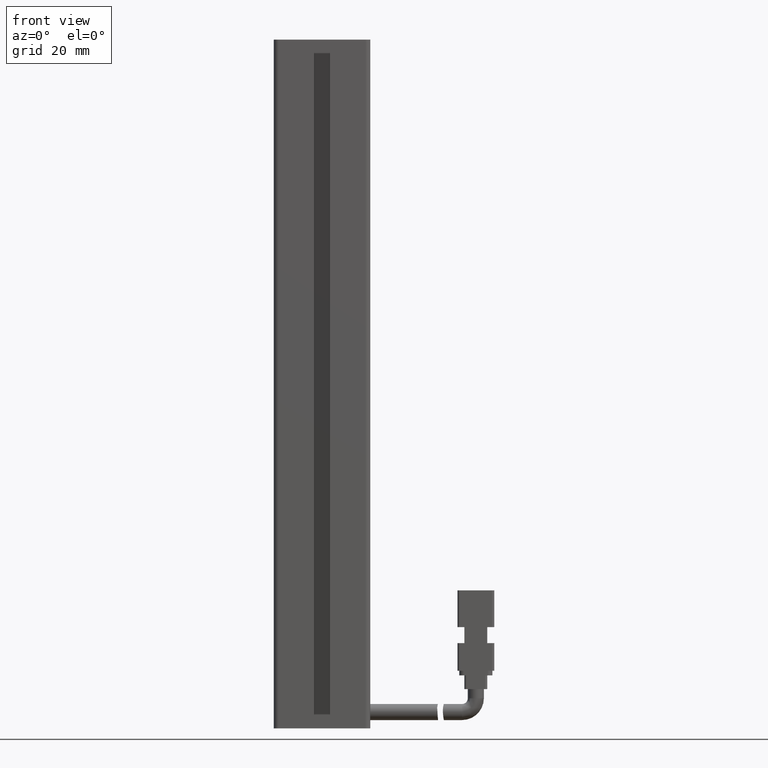
[diagram: clean part render]
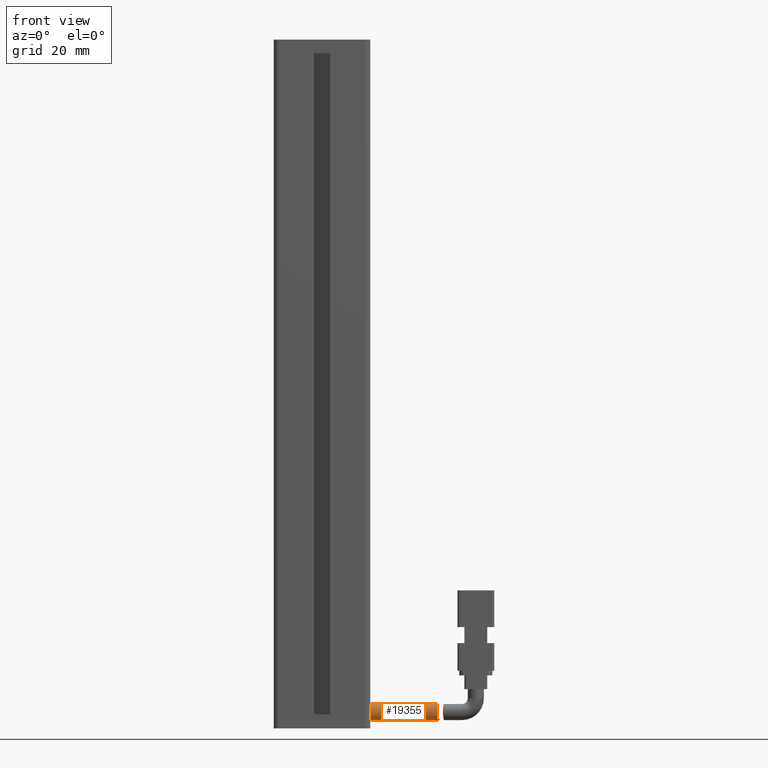
[diagram: same view with one face highlighted and labeled with its STEP entity id]
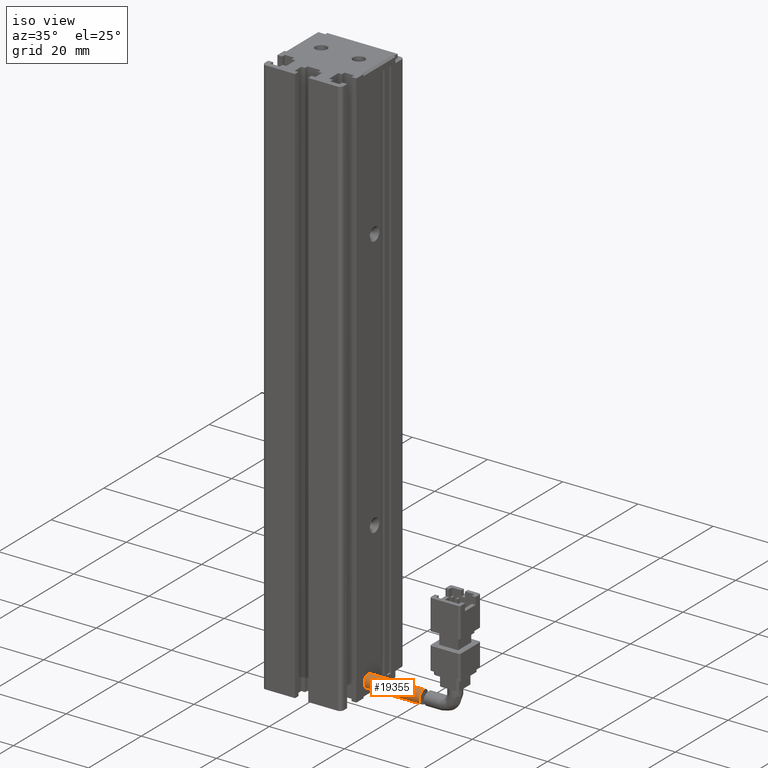
[diagram: same view with one face highlighted and labeled with its STEP entity id]
A machine part, front view. The second image highlights one B-rep face of the part: STEP entity #19355.
A second angle (iso view) of the same face is appended — the face is thin or edge-on in the first view.
In plain terms, the highlighted cylindrical surface (edge-blend (fillet) strip) has radius 1.75 mm, axis along (-1, -0, -0).
Its self-contained STEP definition (entity closure, byte-faithful):
#487 = VECTOR ( 'NONE', #9366, 1000.000000000000000 ) ;
#932 = B_SPLINE_CURVE_WITH_KNOTS ( 'NONE', 3,
 ( #20350, #37198, #27316, #13946, #20498, #4171, #7854, #20633, #10858, #23478, #7302, #17632, #30027, #37055, #4457, #30609, #1088, #23771, #10992, #26894, #17483, #11136, #4307, #10563, #33315, #18895 ),
 .UNSPECIFIED., .F., .F.,
 ( 4, 2, 2, 2, 2, 2, 2, 2, 2, 2, 2, 2, 4 ),
 ( 1.040834085586084300E-017, 0.0003431607499796599900, 0.0006863214999593095700, 0.001029482249938959300, 0.001372642999918608700, 0.002058964499877915000, 0.002745285999837221800, 0.003088446749816916800, 0.003431607499796610900, 0.004117928999756072900, 0.004461089749735805200, 0.004804250499715537500, 0.005490571999674983100 ),
 .UNSPECIFIED. ) ;
#1088 = CARTESIAN_POINT ( 'NONE',  ( 65.97674975456153800, 19.82986165832779300, -185.8867513380907600 ) ) ;
#2377 = CARTESIAN_POINT ( 'NONE',  ( 66.16909918599567700, 21.49073232304854400, -184.6999999999999900 ) ) ;
#2840 = CARTESIAN_POINT ( 'NONE',  ( 71.42537974683537500, 21.49073232304856200, -184.7000000000000200 ) ) ;
#4171 = CARTESIAN_POINT ( 'NONE',  ( 66.17117312302134700, 20.71299618687268700, -188.0218756747876500 ) ) ;
#4307 = CARTESIAN_POINT ( 'NONE',  ( 66.11999622660435700, 20.71354430800198500, -184.8778917883744800 ) ) ;
#4457 = CARTESIAN_POINT ( 'NONE',  ( 65.97065476178855200, 19.75195885195748200, -186.2212418624716600 ) ) ;
#4595 = VERTEX_POINT ( 'NONE', #2377 ) ;
#5827 = CARTESIAN_POINT ( 'NONE',  ( 71.42537974683537500, 21.49073232304856200, -188.2000000000000200 ) ) ;
#7302 = CARTESIAN_POINT ( 'NONE',  ( 66.05492220013283600, 19.96182696463408800, -187.3312831179886200 ) ) ;
#7642 = VERTEX_POINT ( 'NONE', #21376 ) ;
#7854 = CARTESIAN_POINT ( 'NONE',  ( 66.16091813003942000, 20.61255936552062500, -187.9680184145169900 ) ) ;
#7951 = CARTESIAN_POINT ( 'NONE',  ( 51.42537974683536800, 21.49073232304851900, -188.2000000000000200 ) ) ;
#9092 = LINE ( 'NONE', #2840, #487 ) ;
#9151 = EDGE_CURVE ( 'NONE', #9509, #24700, #21256, .T. ) ;
#9350 = EDGE_CURVE ( 'NONE', #9509, #4595, #932, .T. ) ;
#9366 = DIRECTION ( 'NONE',  ( -1.000000000000000000, -3.304235192336770000E-015, -8.579261317967046800E-031 ) ) ;
#9509 = VERTEX_POINT ( 'NONE', #19312 ) ;
#10227 = CIRCLE ( 'NONE', #37686, 1.750000000000001600 ) ;
#10563 = CARTESIAN_POINT ( 'NONE',  ( 66.15457117823017100, 21.02994706544155100, -184.7463689643742800 ) ) ;
#10858 = CARTESIAN_POINT ( 'NONE',  ( 66.12460940034066000, 20.33289083467247600, -187.7671338581187400 ) ) ;
#10992 = CARTESIAN_POINT ( 'NONE',  ( 66.02121001940463400, 20.09098345961680100, -185.3748734586274900 ) ) ;
#11136 = CARTESIAN_POINT ( 'NONE',  ( 66.10631114892373700, 20.61124924129202500, -184.9327861123732100 ) ) ;
#11799 = EDGE_CURVE ( 'NONE', #4595, #7642, #9092, .T. ) ;
#12895 = AXIS2_PLACEMENT_3D ( 'NONE', #25704, #18870, #25846 ) ;
#13895 = ORIENTED_EDGE ( 'NONE', *, *, #9350, .T. ) ;
#13946 = CARTESIAN_POINT ( 'NONE',  ( 66.19496276555763400, 21.03633168118913600, -188.1438409074872300 ) ) ;
#15370 = DIRECTION ( 'NONE',  ( 1.000000000000000000, 3.304235192336770000E-015, 8.579261317967046800E-031 ) ) ;
#15471 = DIRECTION ( 'NONE',  ( -1.000000000000000000, -3.304235192336770000E-015, -8.579261317967046800E-031 ) ) ;
#17483 = CARTESIAN_POINT ( 'NONE',  ( 66.07810076657456500, 20.42231531355382000, -185.0593477912411200 ) ) ;
#17632 = CARTESIAN_POINT ( 'NONE',  ( 66.00588664361791300, 19.78737048454825500, -186.9112699601980700 ) ) ;
#18870 = DIRECTION ( 'NONE',  ( -1.000000000000000000, -3.304235192336770000E-015, -8.579261317967046800E-031 ) ) ;
#18895 = CARTESIAN_POINT ( 'NONE',  ( 66.16909918599567700, 21.49073232304854400, -184.6999999999999900 ) ) ;
#19312 = CARTESIAN_POINT ( 'NONE',  ( 66.20621967933269000, 21.49073232304854400, -188.2000000000000500 ) ) ;
#19355 = ADVANCED_FACE ( 'NONE', ( #25110 ), #19479, .T. ) ;
#19479 = CYLINDRICAL_SURFACE ( 'NONE', #12895, 1.750000000000001600 ) ;
#20334 = ORIENTED_EDGE ( 'NONE', *, *, #11799, .T. ) ;
#20350 = CARTESIAN_POINT ( 'NONE',  ( 66.20621967933269000, 21.49073232304854400, -188.2000000000000500 ) ) ;
#20498 = CARTESIAN_POINT ( 'NONE',  ( 66.18822953472894700, 20.92490558211200000, -188.1099719075165500 ) ) ;
#20633 = CARTESIAN_POINT ( 'NONE',  ( 66.13767043200717000, 20.42254390752241000, -187.8408778375837200 ) ) ;
#21256 = LINE ( 'NONE', #5827, #32457 ) ;
#21376 = CARTESIAN_POINT ( 'NONE',  ( 51.42537974683536800, 21.49073232304849800, -184.7000000000000200 ) ) ;
#22215 = CARTESIAN_POINT ( 'NONE',  ( 51.42537974683536800, 21.49073232304849800, -186.4500000000000200 ) ) ;
#23478 = CARTESIAN_POINT ( 'NONE',  ( 66.08432375002449500, 20.09174899000159800, -187.5256856806184900 ) ) ;
#23771 = CARTESIAN_POINT ( 'NONE',  ( 65.99681660540065300, 19.96193764474619700, -185.5678160555280600 ) ) ;
#24700 = VERTEX_POINT ( 'NONE', #7951 ) ;
#25081 = DIRECTION ( 'NONE',  ( 0.0000000000000000000, 0.0000000000000000000, 1.000000000000000000 ) ) ;
#25110 = FACE_OUTER_BOUND ( 'NONE', #26706, .T. ) ;
#25704 = CARTESIAN_POINT ( 'NONE',  ( 71.42537974683537500, 21.49073232304856200, -186.4500000000000200 ) ) ;
#25846 = DIRECTION ( 'NONE',  ( 0.0000000000000000000, 0.0000000000000000000, 1.000000000000000000 ) ) ;
#26706 = EDGE_LOOP ( 'NONE', ( #38898, #13895, #20334, #27403 ) ) ;
#26894 = CARTESIAN_POINT ( 'NONE',  ( 66.06345805648926700, 20.33446100659059400, -185.1313984176799200 ) ) ;
#27316 = CARTESIAN_POINT ( 'NONE',  ( 66.20390138008306700, 21.26062417110182100, -188.1885704476976000 ) ) ;
#27403 = ORIENTED_EDGE ( 'NONE', *, *, #38914, .T. ) ;
#30027 = CARTESIAN_POINT ( 'NONE',  ( 65.98599951797793000, 19.74101606756721900, -186.6810619186152800 ) ) ;
#30609 = CARTESIAN_POINT ( 'NONE',  ( 65.97280863591522900, 19.79670929018422500, -185.9961834804894100 ) ) ;
#32457 = VECTOR ( 'NONE', #15471, 1000.000000000000000 ) ;
#33315 = CARTESIAN_POINT ( 'NONE',  ( 66.16909918599569100, 21.25857035714852500, -184.7000000000000500 ) ) ;
#37055 = CARTESIAN_POINT ( 'NONE',  ( 65.97252778088120800, 19.74059244864713800, -186.3377076749583200 ) ) ;
#37198 = CARTESIAN_POINT ( 'NONE',  ( 66.20621967933270500, 21.37467942352717300, -188.2000000000000500 ) ) ;
#37686 = AXIS2_PLACEMENT_3D ( 'NONE', #22215, #15370, #25081 ) ;
#38898 = ORIENTED_EDGE ( 'NONE', *, *, #9151, .F. ) ;
#38914 = EDGE_CURVE ( 'NONE', #7642, #24700, #10227, .T. ) ;